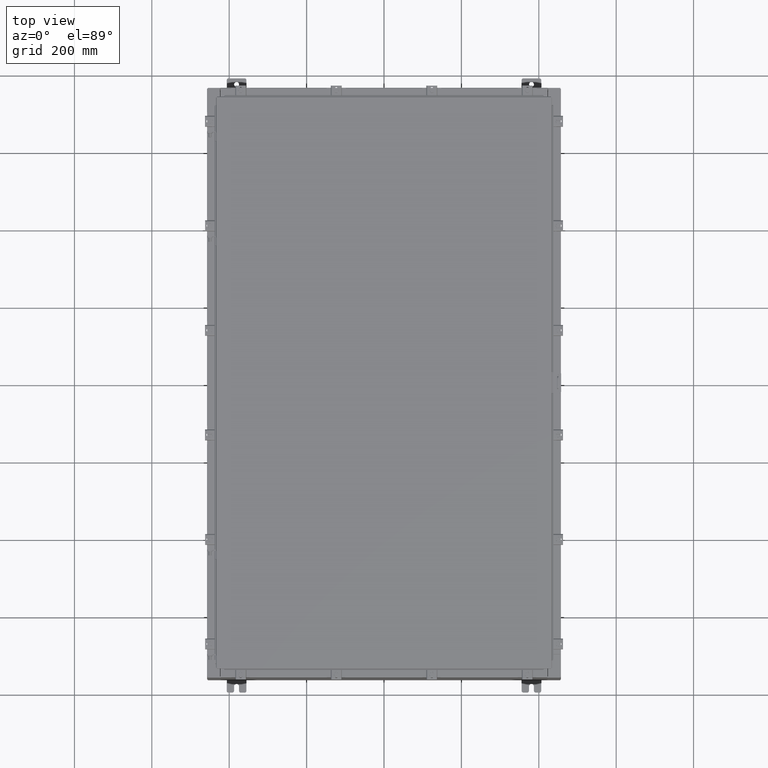
[diagram: clean part render]
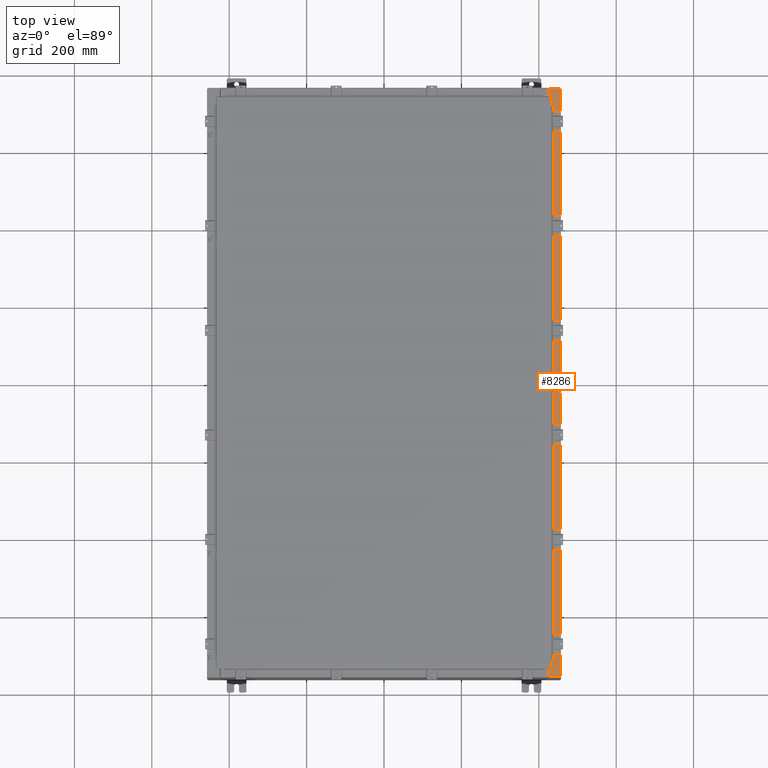
[diagram: same view with one face highlighted and labeled with its STEP entity id]
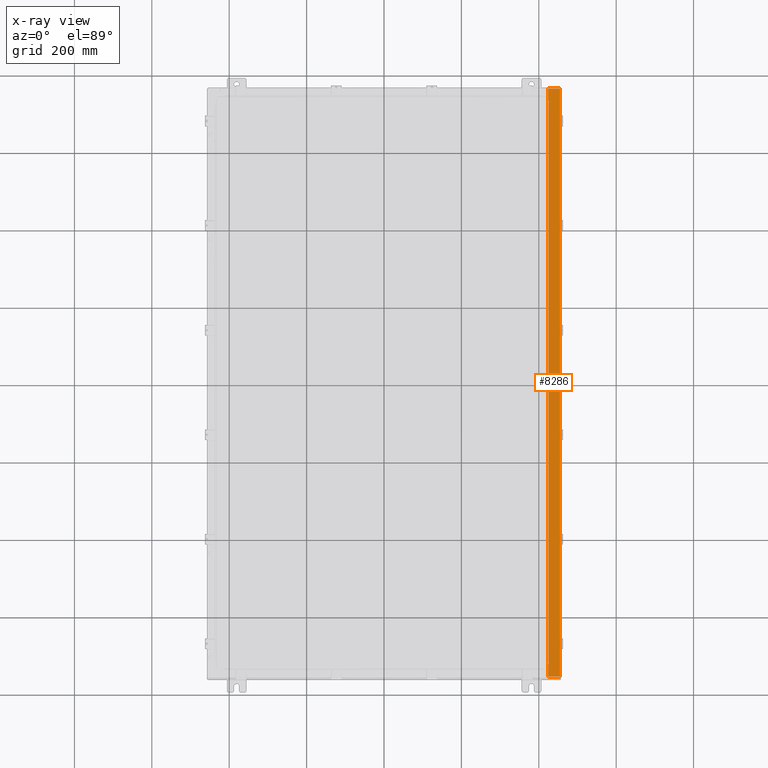
[diagram: x-ray of the same camera — body ghosted, the highlighted face saturated]
A machine part, top view. The second image highlights one B-rep face of the part: STEP entity #8286.
The next image is the same camera in x-ray: the body ghosted, the highlighted face saturated — about 0% of this face is hidden behind the body in this view.
In plain terms, the highlighted planar face has unit normal (-0, -0, -1).
Its self-contained STEP definition (entity closure, byte-faithful):
#435 = CARTESIAN_POINT ( 'NONE',  ( 8.545434926991848800E-014, -29.92530000000001100, 15.92530000000009800 ) ) ;
#499 = AXIS2_PLACEMENT_3D ( 'NONE', #16175, #3363, #18312 ) ;
#668 = DIRECTION ( 'NONE',  ( 5.349571789159788500E-015, 3.651556366905946600E-017, 1.000000000000000000 ) ) ;
#1077 = VECTOR ( 'NONE', #12012, 39.37007874015748100 ) ;
#1295 = AXIS2_PLACEMENT_3D ( 'NONE', #5905, #27290, #14538 ) ;
#1468 = CARTESIAN_POINT ( 'NONE',  ( 16.71270000000005500, 28.59374999999996800, 15.92530000000000500 ) ) ;
#1600 = CARTESIAN_POINT ( 'NONE',  ( 16.75005000000005500, 28.59374999999996800, 15.92530000000000500 ) ) ;
#1736 = CARTESIAN_POINT ( 'NONE',  ( 8.545434926991848800E-014, 29.92529999999999300, 15.92530000000009600 ) ) ;
#1779 = ORIENTED_EDGE ( 'NONE', *, *, #17298, .T. ) ;
#2083 = CARTESIAN_POINT ( 'NONE',  ( 16.69970000000005300, 29.92529999999999300, 15.92530000000000500 ) ) ;
#2755 = ORIENTED_EDGE ( 'NONE', *, *, #4444, .F. ) ;
#3363 = DIRECTION ( 'NONE',  ( 5.349571789159788500E-015, 3.651556366905946600E-017, 1.000000000000000000 ) ) ;
#3561 = DIRECTION ( 'NONE',  ( 1.000000000000000000, 0.0000000000000000000, 0.0000000000000000000 ) ) ;
#3913 = DIRECTION ( 'NONE',  ( 3.651556366905947300E-017, -1.000000000000000000, 3.651556366905926900E-017 ) ) ;
#4355 = LINE ( 'NONE', #7350, #15076 ) ;
#4444 = EDGE_CURVE ( 'NONE', #9406, #13922, #19685, .T. ) ;
#4483 = DIRECTION ( 'NONE',  ( 0.0000000000000000000, -1.000000000000000000, 3.651556366905946600E-017 ) ) ;
#5165 = CARTESIAN_POINT ( 'NONE',  ( 16.71270000000005500, -28.59375000000000400, 15.92530000000000500 ) ) ;
#5611 = EDGE_CURVE ( 'NONE', #24238, #26146, #18967, .T. ) ;
#5905 = CARTESIAN_POINT ( 'NONE',  ( 8.545434926991848800E-014, 5.815213060988761300E-016, 15.92530000000009600 ) ) ;
#6063 = CARTESIAN_POINT ( 'NONE',  ( 17.91230000000005200, -29.92530000000001100, 15.92530000000000200 ) ) ;
#6109 = LINE ( 'NONE', #6530, #22506 ) ;
#6230 = CARTESIAN_POINT ( 'NONE',  ( 16.69970000000005300, -28.63110000000000700, 15.92530000000000500 ) ) ;
#6530 = CARTESIAN_POINT ( 'NONE',  ( 16.69970000000005300, 5.815213060988728800E-016, 15.92530000000000500 ) ) ;
#6898 = VECTOR ( 'NONE', #12882, 39.37007874015748100 ) ;
#7350 = CARTESIAN_POINT ( 'NONE',  ( 16.69970000000005300, 5.815213060988728800E-016, 15.92530000000000500 ) ) ;
#7487 = CIRCLE ( 'NONE', #499, 0.01867499999999949400 ) ;
#8019 = VECTOR ( 'NONE', #26779, 39.37007874015748100 ) ;
#8045 = VERTEX_POINT ( 'NONE', #20084 ) ;
#8059 = PLANE ( 'NONE',  #1295 ) ;
#8205 = CARTESIAN_POINT ( 'NONE',  ( 16.75005000000005500, -28.63110000000000700, 15.92530000000000500 ) ) ;
#8286 = ADVANCED_FACE ( 'NONE', ( #19496 ), #8059, .F. ) ;
#8329 = VERTEX_POINT ( 'NONE', #16783 ) ;
#8465 = LINE ( 'NONE', #26836, #19186 ) ;
#8726 = VERTEX_POINT ( 'NONE', #6230 ) ;
#8985 = ORIENTED_EDGE ( 'NONE', *, *, #15358, .F. ) ;
#9406 = VERTEX_POINT ( 'NONE', #1600 ) ;
#10025 = VERTEX_POINT ( 'NONE', #27550 ) ;
#10552 = VECTOR ( 'NONE', #3561, 39.37007874015748100 ) ;
#11086 = ORIENTED_EDGE ( 'NONE', *, *, #24033, .F. ) ;
#11176 = ORIENTED_EDGE ( 'NONE', *, *, #15922, .F. ) ;
#11655 = DIRECTION ( 'NONE',  ( 0.0000000000000000000, -1.000000000000000000, 3.651556366905946600E-017 ) ) ;
#11728 = AXIS2_PLACEMENT_3D ( 'NONE', #13402, #668, #15572 ) ;
#11971 = LINE ( 'NONE', #1736, #23353 ) ;
#12012 = DIRECTION ( 'NONE',  ( 1.000000000000000000, 0.0000000000000000000, 0.0000000000000000000 ) ) ;
#12354 = VECTOR ( 'NONE', #20144, 39.37007874015748100 ) ;
#12570 = CARTESIAN_POINT ( 'NONE',  ( 16.75005000000005500, 28.63109999999996800, 15.92530000000000500 ) ) ;
#12882 = DIRECTION ( 'NONE',  ( 1.000000000000000000, -2.430865342914509000E-063, -5.349571789159789300E-015 ) ) ;
#13402 = CARTESIAN_POINT ( 'NONE',  ( 16.75005000000005500, 28.61242499999997000, 15.92530000000000500 ) ) ;
#13403 = VERTEX_POINT ( 'NONE', #2083 ) ;
#13922 = VERTEX_POINT ( 'NONE', #12570 ) ;
#14405 = CARTESIAN_POINT ( 'NONE',  ( 16.69970000000005300, -29.92530000000001100, 15.92530000000000900 ) ) ;
#14538 = DIRECTION ( 'NONE',  ( -1.000000000000000000, 0.0000000000000000000, 5.349571789159788500E-015 ) ) ;
#15076 = VECTOR ( 'NONE', #11655, 39.37007874015748100 ) ;
#15358 = EDGE_CURVE ( 'NONE', #8045, #26146, #25112, .T. ) ;
#15572 = DIRECTION ( 'NONE',  ( 1.000000000000000000, 0.0000000000000000000, 0.0000000000000000000 ) ) ;
#15802 = EDGE_CURVE ( 'NONE', #8726, #24238, #4355, .T. ) ;
#15868 = EDGE_CURVE ( 'NONE', #13922, #18428, #19422, .T. ) ;
#15922 = EDGE_CURVE ( 'NONE', #8726, #19768, #24434, .T. ) ;
#15985 = EDGE_LOOP ( 'NONE', ( #11176, #23033, #19137, #8985, #1779, #18318, #16174, #2755, #18023, #11086, #17439, #25399 ) ) ;
#16174 = ORIENTED_EDGE ( 'NONE', *, *, #15868, .F. ) ;
#16175 = CARTESIAN_POINT ( 'NONE',  ( 16.75005000000005500, -28.61242500000000900, 15.92530000000000500 ) ) ;
#16655 = DIRECTION ( 'NONE',  ( -1.000000000000000000, 2.430865342914509000E-063, 5.349571789159789300E-015 ) ) ;
#16783 = CARTESIAN_POINT ( 'NONE',  ( 16.71270000000005500, 28.59374999999996800, 15.92530000000000500 ) ) ;
#16918 = LINE ( 'NONE', #1468, #10552 ) ;
#17298 = EDGE_CURVE ( 'NONE', #8045, #13403, #11971, .T. ) ;
#17439 = ORIENTED_EDGE ( 'NONE', *, *, #20739, .F. ) ;
#17963 = CARTESIAN_POINT ( 'NONE',  ( 17.91230000000005200, -29.92530000000001100, 15.92530000000000200 ) ) ;
#18023 = ORIENTED_EDGE ( 'NONE', *, *, #19647, .F. ) ;
#18312 = DIRECTION ( 'NONE',  ( 1.000000000000000000, 0.0000000000000000000, 0.0000000000000000000 ) ) ;
#18318 = ORIENTED_EDGE ( 'NONE', *, *, #21058, .T. ) ;
#18428 = VERTEX_POINT ( 'NONE', #27219 ) ;
#18967 = LINE ( 'NONE', #435, #6898 ) ;
#19137 = ORIENTED_EDGE ( 'NONE', *, *, #5611, .T. ) ;
#19186 = VECTOR ( 'NONE', #24703, 39.37007874015748100 ) ;
#19422 = LINE ( 'NONE', #24650, #8019 ) ;
#19496 = FACE_OUTER_BOUND ( 'NONE', #15985, .T. ) ;
#19647 = EDGE_CURVE ( 'NONE', #8329, #9406, #16918, .T. ) ;
#19685 = CIRCLE ( 'NONE', #11728, 0.01867499999999949400 ) ;
#19768 = VERTEX_POINT ( 'NONE', #8205 ) ;
#20084 = CARTESIAN_POINT ( 'NONE',  ( 17.91230000000005200, 29.92529999999999300, 15.92530000000000000 ) ) ;
#20143 = VECTOR ( 'NONE', #3913, 39.37007874015748100 ) ;
#20144 = DIRECTION ( 'NONE',  ( -0.0000000000000000000, 1.000000000000000000, -0.0000000000000000000 ) ) ;
#20739 = EDGE_CURVE ( 'NONE', #10025, #20810, #8465, .T. ) ;
#20810 = VERTEX_POINT ( 'NONE', #24883 ) ;
#21058 = EDGE_CURVE ( 'NONE', #13403, #18428, #6109, .T. ) ;
#22396 = LINE ( 'NONE', #5165, #12354 ) ;
#22506 = VECTOR ( 'NONE', #4483, 39.37007874015748100 ) ;
#22677 = CARTESIAN_POINT ( 'NONE',  ( 16.69970000000005300, -28.63110000000000700, 15.92530000000000500 ) ) ;
#23033 = ORIENTED_EDGE ( 'NONE', *, *, #15802, .T. ) ;
#23353 = VECTOR ( 'NONE', #16655, 39.37007874015748100 ) ;
#24033 = EDGE_CURVE ( 'NONE', #20810, #8329, #22396, .T. ) ;
#24238 = VERTEX_POINT ( 'NONE', #14405 ) ;
#24434 = LINE ( 'NONE', #22677, #1077 ) ;
#24650 = CARTESIAN_POINT ( 'NONE',  ( 16.75005000000005500, 28.63109999999996800, 15.92530000000000500 ) ) ;
#24703 = DIRECTION ( 'NONE',  ( -1.000000000000000000, 0.0000000000000000000, 0.0000000000000000000 ) ) ;
#24883 = CARTESIAN_POINT ( 'NONE',  ( 16.71270000000005500, -28.59375000000001100, 15.92530000000000500 ) ) ;
#25112 = LINE ( 'NONE', #6063, #20143 ) ;
#25399 = ORIENTED_EDGE ( 'NONE', *, *, #26927, .F. ) ;
#26146 = VERTEX_POINT ( 'NONE', #17963 ) ;
#26779 = DIRECTION ( 'NONE',  ( -1.000000000000000000, 0.0000000000000000000, 0.0000000000000000000 ) ) ;
#26836 = CARTESIAN_POINT ( 'NONE',  ( 16.75005000000005500, -28.59375000000001100, 15.92530000000000500 ) ) ;
#26927 = EDGE_CURVE ( 'NONE', #19768, #10025, #7487, .T. ) ;
#27219 = CARTESIAN_POINT ( 'NONE',  ( 16.69970000000005300, 28.63109999999997200, 15.92530000000000500 ) ) ;
#27290 = DIRECTION ( 'NONE',  ( -5.349571789159788500E-015, -3.651556366905946600E-017, -1.000000000000000000 ) ) ;
#27550 = CARTESIAN_POINT ( 'NONE',  ( 16.75005000000005500, -28.59375000000001100, 15.92530000000000500 ) ) ;